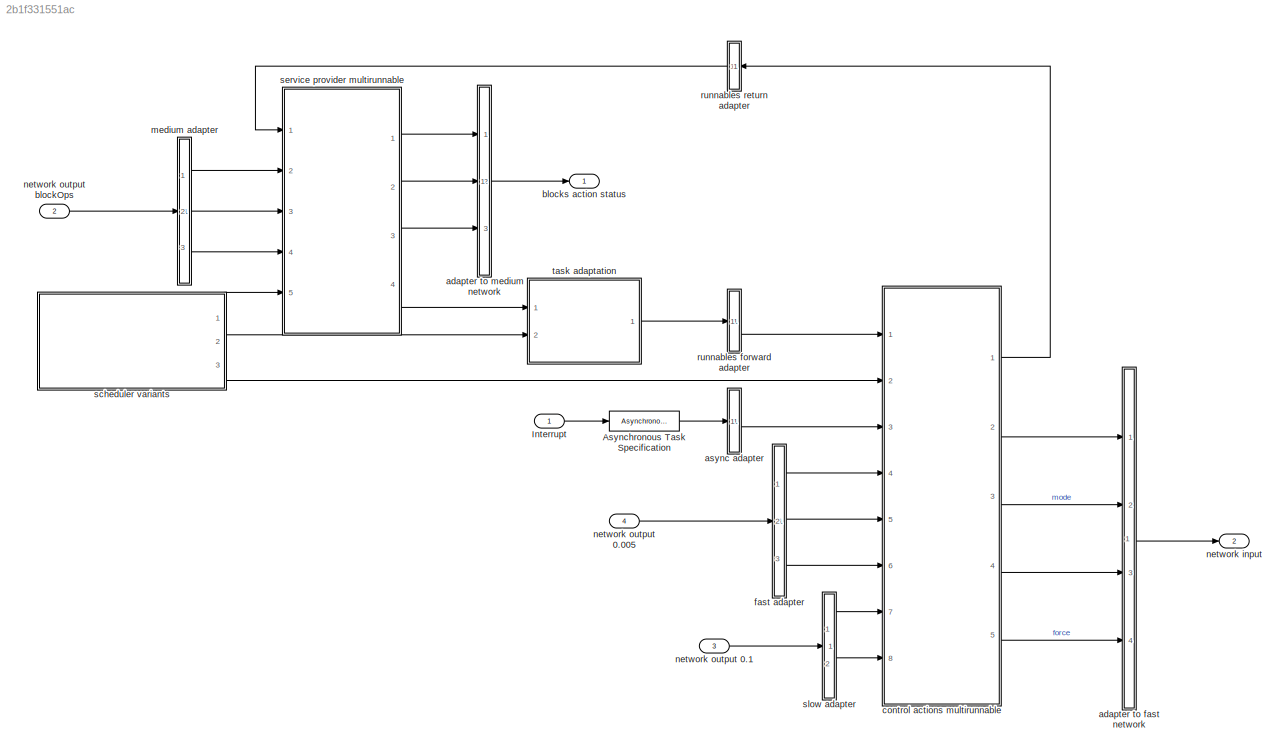
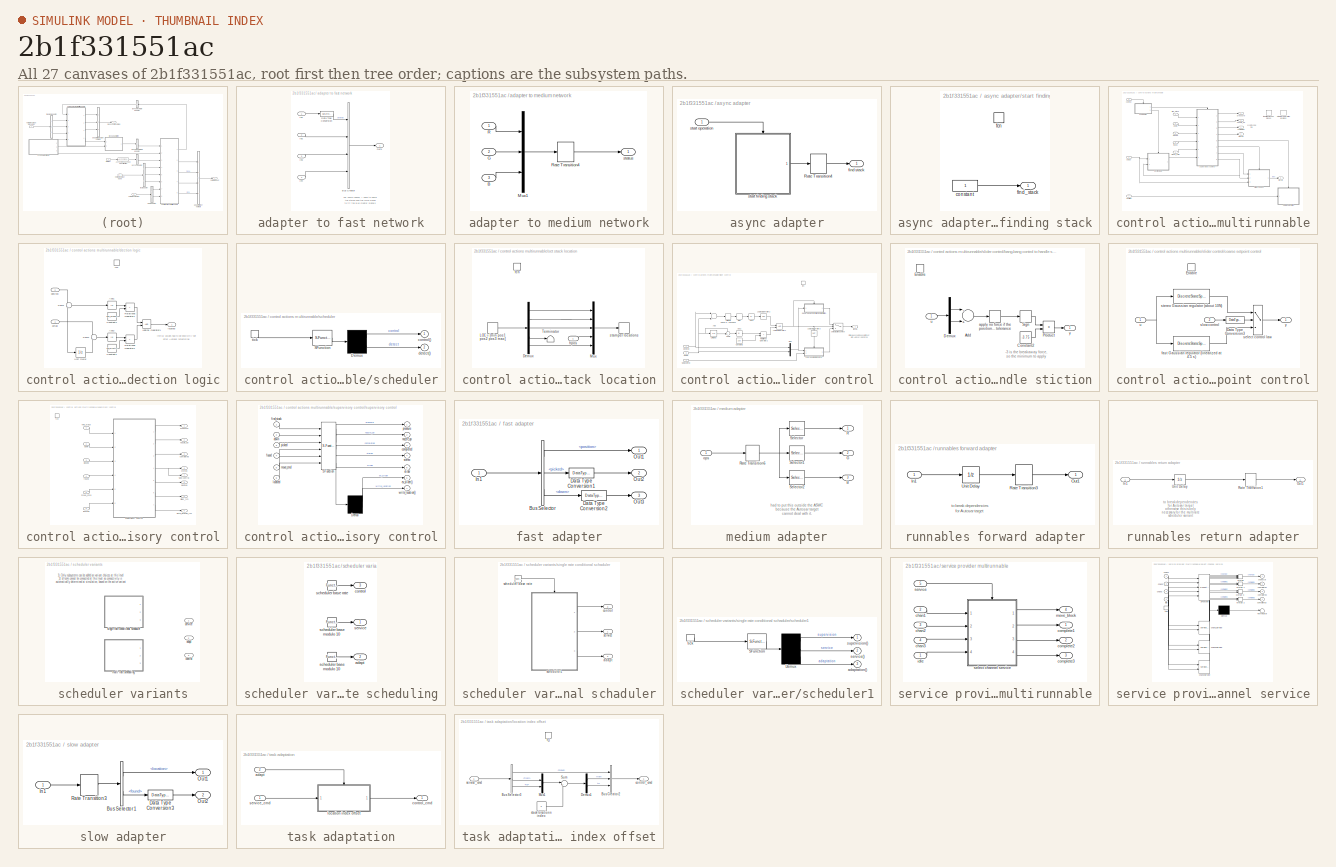
[diagram: thumbnail index - all 27 canvases of the model, root first then tree order]
MODEL slx_2b1f331551ac
KIND model
WORKSPACE source: MAT-file member
WORKSPACE vel_effective_zero = 0.0001
BLOCK [AsynchronousTaskSpecification] Asynchronous Task Specification
BLOCK [Inport] Interrupt
  IconDisplay = Port number
  OutputFunctionCall = on
BLOCK [SubSystem] adapter to fast network
  FunctionWithSeparateData = off
  MaskHideContents = off
  MinAlgLoopOccurrences = off
  Opaque = off
  Ports = [4, 1]
  PropExecContextOutsideSubsystem = off
  RTWSystemCode = Auto
  RequestExecContextInheritance = off
BLOCK [BusCreator] adapter to fast network/Bus Creator
  DisplayOption = bar
  Inputs = 'stereo','mode','pressure','force'
  NonVirtualBus = on
  OutDataTypeStr = Bus: slBusBaseOps
  Ports = [4, 1]
BLOCK [DataTypeConversion] adapter to fast network/Data Type Conversion
  OutDataTypeStr = double
  RndMeth = Floor
  SaturateOnIntegerOverflow = off
BLOCK [Inport] adapter to fast network/In1
  IconDisplay = Port number
BLOCK [Inport] adapter to fast network/In2
  IconDisplay = Port number
  Port = 2
BLOCK [Inport] adapter to fast network/In3
  IconDisplay = Port number
  Port = 3
BLOCK [Inport] adapter to fast network/In4
  IconDisplay = Port number
  Port = 4
BLOCK [Outport] adapter to fast network/Out1
  IconDisplay = Port number
BLOCK [SubSystem] adapter to medium network
  FunctionWithSeparateData = off
  MaskHideContents = off
  MinAlgLoopOccurrences = off
  Opaque = off
  Ports = [3, 1]
  PropExecContextOutsideSubsystem = off
  RTWSystemCode = Auto
  RequestExecContextInheritance = off
BLOCK [Inport] adapter to medium network/B
  IconDisplay = Port number
  Port = 3
BLOCK [Inport] adapter to medium network/G
  IconDisplay = Port number
  Port = 2
BLOCK [Mux] adapter to medium network/Mux1
  DisplayOption = bar
  Inputs = 3
  Ports = [3, 1]
BLOCK [Inport] adapter to medium network/R
  IconDisplay = Port number
BLOCK [RateTransition] adapter to medium network/Rate Transition4
  Deterministic = off
  Integrity = off
BLOCK [Outport] adapter to medium network/status
  IconDisplay = Port number
BLOCK [SubSystem] async adapter
  FunctionWithSeparateData = off
  MaskHideContents = off
  MinAlgLoopOccurrences = off
  Opaque = off
  Ports = [1, 1]
  PropExecContextOutsideSubsystem = off
  RTWSystemCode = Auto
  RequestExecContextInheritance = off
BLOCK [RateTransition] async adapter/Rate Transition4
  Deterministic = off
  Integrity = off
BLOCK [Outport] async adapter/find stack
  IconDisplay = Port number
BLOCK [SubSystem] async adapter/start finding stack
  FunctionWithSeparateData = off
  MaskHideContents = off
  MinAlgLoopOccurrences = off
  Opaque = off
  Ports = [0, 1, 0, 1]
  PropExecContextOutsideSubsystem = off
  RTWSystemCode = Auto
  RequestExecContextInheritance = off
  TreatAsAtomicUnit = on
BLOCK [Constant] async adapter/start finding stack/constant
  SampleTime = -1
BLOCK [TriggerPort] async adapter/start finding stack/fcn
  PortDimensions = 1
  Ports = []
  StatesWhenEnabling = held
  TriggerType = function-call
BLOCK [Outport] async adapter/start finding stack/find_stack
  IconDisplay = Port number
  InitialOutput = 0
  OutDataTypeStr = double
  OutputWhenDisabled = reset
  PortDimensions = 1
  SamplingMode = Sample based
  SignalType = real
BLOCK [Inport] async adapter/start operation
  IconDisplay = Port number
BLOCK [Outport] blocks action status
  BusOutputAsStruct = on
  IconDisplay = Port number
  SampleTime = 0.05
BLOCK [SubSystem] control actions multirunnable
  FunctionWithSeparateData = off
  MaskHideContents = off
  MinAlgLoopOccurrences = off
  Opaque = off
  Ports = [8, 5]
  PropExecContextOutsideSubsystem = off
  RTWSystemCode = Auto
  RequestExecContextInheritance = off
BLOCK [Inport] control actions multirunnable/actual
  IconDisplay = Port number
  Port = 4
BLOCK [Outport] control actions multirunnable/completed
  IconDisplay = Port number
BLOCK [Inport] control actions multirunnable/control
  IconDisplay = Port number
  Port = 2
BLOCK [SubSystem] control actions multirunnable/dection logic
  FunctionWithSeparateData = off
  MaskHideContents = off
  MinAlgLoopOccurrences = off
  Opaque = off
  Ports = [2, 1, 0, 1]
  PropExecContextOutsideSubsystem = off
  RTWSystemCode = Auto
  RequestExecContextInheritance = off
BLOCK [Abs] control actions multirunnable/dection logic/Abs1
  SaturateOnIntegerOverflow = off
  ZeroCross = off
BLOCK [Abs] control actions multirunnable/dection logic/Abs2
  SaturateOnIntegerOverflow = off
  ZeroCross = off
BLOCK [Constant] control actions multirunnable/dection logic/Constant1
  OutDataTypeStr = double
  Value = vel_effective_zero
BLOCK [Constant] control actions multirunnable/dection logic/Constant4
  OutDataTypeStr = double
  Value = pos_precision
BLOCK [Logic] control actions multirunnable/dection logic/Logical Operator1
  AllPortsSameDT = off
  OutDataTypeStr = boolean
  Ports = [2, 1]
BLOCK [RelationalOperator] control actions multirunnable/dection logic/Relational Operator1
  InputSameDT = off
  Operator = <
  OutDataTypeStr = boolean
  Ports = [2, 1]
  ZeroCross = off
BLOCK [RelationalOperator] control actions multirunnable/dection logic/Relational Operator2
  InputSameDT = off
  Operator = <
  OutDataTypeStr = boolean
  Ports = [2, 1]
  ZeroCross = off
BLOCK [Sum] control actions multirunnable/dection logic/Sum1
  IconShape = round
  InputSameDT = off
  Inputs = -|+
  OutDataTypeStr = Inherit: Inherit via internal rule
  Ports = [2, 1]
  SaturateOnIntegerOverflow = off
BLOCK [Sum] control actions multirunnable/dection logic/Sum2
  IconShape = round
  InputSameDT = off
  Inputs = -|+
  OutDataTypeStr = Inherit: Inherit via internal rule
  Ports = [2, 1]
  SaturateOnIntegerOverflow = off
BLOCK [UnitDelay] control actions multirunnable/dection logic/Unit Delay
  InputProcessing = Elements as channels (sample based)
  SampleTime = -1
BLOCK [Inport] control actions multirunnable/dection logic/actual
  IconDisplay = Port number
BLOCK [Inport] control actions multirunnable/dection logic/desired
  IconDisplay = Port number
  Port = 2
BLOCK [TriggerPort] control actions multirunnable/dection logic/fcn
  PortDimensions = 1
  Ports = []
  StatesWhenEnabling = held
  TriggerType = function-call
BLOCK [Outport] control actions multirunnable/dection logic/located
  IconDisplay = Port number
  InitialOutput = 0
  OutDataTypeStr = boolean
  PortDimensions = 1
  SamplingMode = Sample based
  SignalType = real
BLOCK [Inport] control actions multirunnable/down
  IconDisplay = Port number
  Port = 6
BLOCK [Inport] control actions multirunnable/find_stack
  IconDisplay = Port number
  Port = 3
BLOCK [Outport] control actions multirunnable/force
  IconDisplay = Port number
  Port = 5
BLOCK [Inport] control actions multirunnable/found
  IconDisplay = Port number
  Port = 8
BLOCK [Inport] control actions multirunnable/move_cmd
  IconDisplay = Port number
BLOCK [Outport] control actions multirunnable/nozzle_op
  IconDisplay = Port number
  Port = 3
BLOCK [Inport] control actions multirunnable/picked
  IconDisplay = Port number
  Port = 5
BLOCK [Inport] control actions multirunnable/position
  IconDisplay = Port number
  Port = 7
BLOCK [Outport] control actions multirunnable/pressure
  IconDisplay = Port number
  Port = 4
BLOCK [SubSystem] control actions multirunnable/scheduler
  ErrorFcn = Stateflow.Translate.translate
  FunctionWithSeparateData = off
  MaskHideContents = off
  MinAlgLoopOccurrences = off
  Opaque = off
  PermitHierarchicalResolution = ExplicitOnly
  Ports = [0, 2, 0, 1]
  PropExecContextOutsideSubsystem = off
  RTWSystemCode = Auto
  RequestExecContextInheritance = off
  SFBlockType = Chart
  TreatAsAtomicUnit = on
BLOCK [Demux] control actions multirunnable/scheduler/ Demux 
  Outputs = 2
  Ports = [1, 2]
BLOCK [S-Function] control actions multirunnable/scheduler/ SFunction 
  EnableBusSupport = on
  FunctionName = sf_sfun
  PortCounts = [1 1]
  Ports = [1, 1]
  Tag = Stateflow S-Function cps_base_processor_v2 3
BLOCK [Outport] control actions multirunnable/scheduler/control()
  IconDisplay = Port number
BLOCK [Outport] control actions multirunnable/scheduler/detect()
  IconDisplay = Port number
  Port = 2
BLOCK [TriggerPort] control actions multirunnable/scheduler/tick
  Ports = [0, 1]
  ShowOutputPort = on
  StatesWhenEnabling = held
  TriggerType = function-call
BLOCK [SubSystem] control actions multirunnable/set stack location
  FunctionWithSeparateData = off
  MaskHideContents = off
  MinAlgLoopOccurrences = off
  Opaque = off
  Ports = [1, 0, 0, 1]
  PropExecContextOutsideSubsystem = off
  RTWSystemCode = Auto
  RequestExecContextInheritance = off
  TreatAsAtomicUnit = on
BLOCK [Demux] control actions multirunnable/set stack location/Demux
  DisplayOption = bar
  Outputs = 5
  Ports = [1, 5]
BLOCK [DataStoreRead] control actions multirunnable/set stack location/LOC = [min pos1 pos2 pos3 max]
  DataStoreName = LOC
  Ports = [0, 1]
BLOCK [Mux] control actions multirunnable/set stack location/Mux
  DisplayOption = bar
  Inputs = 5
  Ports = [5, 1]
BLOCK [Terminator] control actions multirunnable/set stack location/Terminator
BLOCK [TriggerPort] control actions multirunnable/set stack location/fcn
  Ports = []
  StatesWhenEnabling = held
  TriggerType = function-call
BLOCK [Inport] control actions multirunnable/set stack location/hpos
  IconDisplay = Port number
BLOCK [DataStoreWrite] control actions multirunnable/set stack location/stamper locations
  DataStoreName = LOC
  Ports = [1]
BLOCK [SubSystem] control actions multirunnable/slider control
  FunctionWithSeparateData = off
  MaskHideContents = off
  MinAlgLoopOccurrences = off
  Opaque = off
  Ports = [3, 1, 0, 1]
  PropExecContextOutsideSubsystem = off
  RTWSystemCode = Auto
  RequestExecContextInheritance = off
BLOCK [Abs] control actions multirunnable/slider control/Abs1
  SaturateOnIntegerOverflow = off
  ZeroCross = off
BLOCK [Abs] control actions multirunnable/slider control/Abs2
  SaturateOnIntegerOverflow = off
  ZeroCross = off
BLOCK [Sum] control actions multirunnable/slider control/Add
  InputSameDT = off
  Inputs = -+
  OutDataTypeStr = Inherit: Inherit via internal rule
  Ports = [2, 1]
  SaturateOnIntegerOverflow = off
BLOCK [Constant] control actions multirunnable/slider control/Constant2
  OutDataTypeStr = double
  Value = 1e-3
BLOCK [Logic] control actions multirunnable/slider control/Logical Operator1
  AllPortsSameDT = off
  OutDataTypeStr = boolean
  Ports = [2, 1]
BLOCK [Logic] control actions multirunnable/slider control/Logical Operator2
  AllPortsSameDT = off
  Operator = NOT
  OutDataTypeStr = boolean
  Ports = [1, 1]
BLOCK [Logic] control actions multirunnable/slider control/Logical Operator3
  AllPortsSameDT = off
  Operator = NOT
  OutDataTypeStr = boolean
  Ports = [1, 1]
BLOCK [Mux] control actions multirunnable/slider control/Mux
  DisplayOption = bar
  Inputs = 2
  Ports = [2, 1]
BLOCK [RelationalOperator] control actions multirunnable/slider control/Relational Operator2
  InputSameDT = off
  Operator = <
  OutDataTypeStr = boolean
  Ports = [2, 1]
  ZeroCross = off
BLOCK [Signum] control actions multirunnable/slider control/Sign
BLOCK [Sum] control actions multirunnable/slider control/Sum2
  IconShape = round
  InputSameDT = off
  Inputs = -+|
  OutDataTypeStr = Inherit: Inherit via internal rule
  Ports = [2, 1]
  SaturateOnIntegerOverflow = off
BLOCK [UnitDelay] control actions multirunnable/slider control/Unit Delay
  InputProcessing = Elements as channels (sample based)
  SampleTime = -1
BLOCK [Inport] control actions multirunnable/slider control/actual
  IconDisplay = Port number
  OutDataTypeStr = double
  Port = 3
  PortDimensions = 1
  SamplingMode = Sample based
  SignalType = real
BLOCK [SubSystem] control actions multirunnable/slider control/bang-bang control to handle stiction
  FunctionWithSeparateData = off
  MaskHideContents = off
  MinAlgLoopOccurrences = off
  Opaque = off
  Ports = [1, 1, 1]
  PropExecContextOutsideSubsystem = off
  RTWSystemCode = Auto
  RequestExecContextInheritance = off
  TreatAsAtomicUnit = on
BLOCK [Sum] control actions multirunnable/slider control/bang-bang control to handle stiction/Add
  InputSameDT = off
  Inputs = -+
  OutDataTypeStr = Inherit: Inherit via internal rule
  Ports = [2, 1]
  SaturateOnIntegerOverflow = off
BLOCK [Constant] control actions multirunnable/slider control/bang-bang control to handle stiction/Constant2
  Value = -3.75
BLOCK [Demux] control actions multirunnable/slider control/bang-bang control to handle stiction/Demux
  DisplayOption = bar
  Outputs = 2
  Ports = [1, 2]
BLOCK [EnablePort] control actions multirunnable/slider control/bang-bang control to handle stiction/Enable
  Ports = []
  StatesWhenEnabling = reset
BLOCK [Product] control actions multirunnable/slider control/bang-bang control to handle stiction/Product
  InputSameDT = off
  OutDataTypeStr = Inherit: Inherit via internal rule
  Ports = [2, 1]
  SaturateOnIntegerOverflow = off
BLOCK [Signum] control actions multirunnable/slider control/bang-bang control to handle stiction/Sign
BLOCK [DeadZone] control actions multirunnable/slider control/bang-bang control to handle stiction/apply no force if the position is witin tolerance
  LowerValue = -pos_precision
  UpperValue = pos_precision
BLOCK [Inport] control actions multirunnable/slider control/bang-bang control to handle stiction/u
  IconDisplay = Port number
BLOCK [Outport] control actions multirunnable/slider control/bang-bang control to handle stiction/y
  IconDisplay = Port number
  InitialOutput = 0
  OutputWhenDisabled = reset
BLOCK [SubSystem] control actions multirunnable/slider control/coarse setpoint control
  FunctionWithSeparateData = off
  MaskHideContents = off
  MinAlgLoopOccurrences = off
  Opaque = off
  Ports = [2, 1, 1]
  PropExecContextOutsideSubsystem = off
  RTWSystemCode = Auto
  RequestExecContextInheritance = off
  TreatAsAtomicUnit = on
BLOCK [DataTypeConversion] control actions multirunnable/slider control/coarse setpoint control/Data Type Conversion3
  OutDataTypeStr = double
  RndMeth = Floor
  SaturateOnIntegerOverflow = off
BLOCK [EnablePort] control actions multirunnable/slider control/coarse setpoint control/Enable
  Ports = []
  StatesWhenEnabling = reset
BLOCK [DiscreteStateSpace] control actions multirunnable/slider control/coarse setpoint control/fast Gaussian regulator (linearized at 4.5 s)
  A = [ 0.9940    0.0048    0.0024; -0.3823    0.9227    0.9613;  0         0    1.0000]
  B = [0.0000    0.0050;  0.0024   -0.0033;  0.0050   -0.0050]
  C = [-78.2835   -6.2453  196.8773]
  D = [0.4922   -0.6889]
  SampleTime = -1
  X0 = [0.000000000000000 ;0.000000000000000 ;0.000000000000000 ]
BLOCK [Switch] control actions multirunnable/slider control/coarse setpoint control/select control law
  InputSameDT = off
  SaturateOnIntegerOverflow = off
  Threshold = 0.5
BLOCK [Inport] control actions multirunnable/slider control/coarse setpoint control/slow control
  IconDisplay = Port number
  Port = 2
BLOCK [DiscreteStateSpace] control actions multirunnable/slider control/coarse setpoint control/stereo Gaussian regulator (about 10N)
  A = [0.994649281526801 0.004838663977542 0.000386711916538 ;-0.134079378817680 0.940867531416425 0.153387200445988 ;0.000000000000000 0.000000000000000 1.000000000000000 ]
  B = [0.000000648050558 0.005011238871482 ;0.000387363207348 -0.000703695596376 ;0.005000000000000 -0.005000000000000 ]
  C = [-27.699999999999999 -2.608000000000000 31.620000000000001 ]
  D = [0.000000000000000 0.000000000000000 ]
  SampleTime = -1
  X0 = [0.000000000000000 ;0.000000000000000 ;0.000000000000000 ]
BLOCK [Inport] control actions multirunnable/slider control/coarse setpoint control/u
  IconDisplay = Port number
BLOCK [Outport] control actions multirunnable/slider control/coarse setpoint control/y
  IconDisplay = Port number
  InitialOutput = 0
  OutputWhenDisabled = reset
BLOCK [Inport] control actions multirunnable/slider control/desired
  IconDisplay = Port number
  OutDataTypeStr = double
  Port = 2
  PortDimensions = 1
  SamplingMode = Sample based
  SignalType = real
BLOCK [TriggerPort] control actions multirunnable/slider control/fcn
  PortDimensions = 1
  Ports = []
  StatesWhenEnabling = held
  TriggerType = function-call
BLOCK [Outport] control actions multirunnable/slider control/force
  IconDisplay = Port number
  InitialOutput = 0
  OutDataTypeStr = double
  OutputWhenDisabled = reset
  PortDimensions = 1
  SamplingMode = Sample based
  SignalType = real
BLOCK [Switch] control actions multirunnable/slider control/select active control
  InputSameDT = off
  SaturateOnIntegerOverflow = off
  Threshold = 0.5
BLOCK [Inport] control actions multirunnable/slider control/slow control
  IconDisplay = Port number
  OutDataTypeStr = boolean
  PortDimensions = 1
  SamplingMode = Sample based
  SignalType = real
BLOCK [DeadZone] control actions multirunnable/slider control/switch to bang-bang when close
  LowerValue = -0.11
  UpperValue = 0.11
BLOCK [DataStoreMemory] control actions multirunnable/stamper operation locatons
  DataStoreName = LOC
  InitialValue = [0.4 0.3 -0.05 -0.4 -0.6]
  OutDataTypeStr = double
  SignalType = real
  WriteAfterWriteMsg = warning
BLOCK [Outport] control actions multirunnable/stereo
  IconDisplay = Port number
  Port = 2
BLOCK [SubSystem] control actions multirunnable/supervisory control
  FunctionWithSeparateData = off
  MaskHideContents = off
  MinAlgLoopOccurrences = off
  Opaque = off
  Ports = [6, 8, 0, 1]
  PropExecContextOutsideSubsystem = off
  RTWSystemCode = Auto
  RequestExecContextInheritance = off
BLOCK [Outport] control actions multirunnable/supervisory control/completed
  IconDisplay = Port number
  InitialOutput = 0
  Port = 3
BLOCK [Outport] control actions multirunnable/supervisory control/desired
  IconDisplay = Port number
  InitialOutput = 0
  Port = 8
BLOCK [Inport] control actions multirunnable/supervisory control/down
  IconDisplay = Port number
  Port = 2
BLOCK [TriggerPort] control actions multirunnable/supervisory control/fcn
  PortDimensions = 1
  Ports = []
  StatesWhenEnabling = held
  TriggerType = function-call
BLOCK [Inport] control actions multirunnable/supervisory control/find_stack
  IconDisplay = Port number
BLOCK [Inport] control actions multirunnable/supervisory control/found
  IconDisplay = Port number
  Port = 4
BLOCK [Inport] control actions multirunnable/supervisory control/located
  IconDisplay = Port number
  Port = 6
BLOCK [Inport] control actions multirunnable/supervisory control/move_cmd
  IconDisplay = Port number
  Port = 5
BLOCK [Outport] control actions multirunnable/supervisory control/nozzle_op
  IconDisplay = Port number
  InitialOutput = 0
  Port = 2
BLOCK [Inport] control actions multirunnable/supervisory control/picked
  IconDisplay = Port number
  Port = 3
BLOCK [Outport] control actions multirunnable/supervisory control/pressure
  IconDisplay = Port number
  InitialOutput = 0
BLOCK [Outport] control actions multirunnable/supervisory control/slider_fcn
  IconDisplay = Port number
  Port = 6
BLOCK [Outport] control actions multirunnable/supervisory control/slow control
  IconDisplay = Port number
  InitialOutput = 0
  Port = 7
BLOCK [Outport] control actions multirunnable/supervisory control/stereo
  IconDisplay = Port number
  InitialOutput = 0
  Port = 4
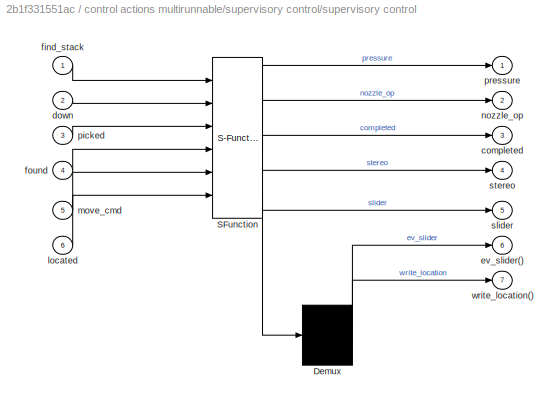
BLOCK [SubSystem] control actions multirunnable/supervisory control/supervisory control
  ErrorFcn = Stateflow.Translate.translate
  FunctionWithSeparateData = off
  MaskHideContents = off
  MinAlgLoopOccurrences = off
  Opaque = off
  PermitHierarchicalResolution = ExplicitOnly
  Ports = [6, 7]
  PropExecContextOutsideSubsystem = off
  RTWSystemCode = Auto
  RequestExecContextInheritance = off
  SFBlockType = Chart
  TreatAsAtomicUnit = on
BLOCK [Demux] control actions multirunnable/supervisory control/supervisory control/ Demux 
  Outputs = 2
  Ports = [1, 2]
BLOCK [S-Function] control actions multirunnable/supervisory control/supervisory control/ SFunction 
  EnableBusSupport = on
  FunctionName = sf_sfun
  PortCounts = [6 6]
  Ports = [6, 6]
  Tag = Stateflow S-Function cps_base_processor_v2 2
BLOCK [Outport] control actions multirunnable/supervisory control/supervisory control/completed
  IconDisplay = Port number
  Port = 3
BLOCK [Inport] control actions multirunnable/supervisory control/supervisory control/down
  IconDisplay = Port number
  Port = 2
BLOCK [Outport] control actions multirunnable/supervisory control/supervisory control/ev_slider()
  IconDisplay = Port number
  Port = 6
BLOCK [Inport] control actions multirunnable/supervisory control/supervisory control/find_stack
  IconDisplay = Port number
BLOCK [Inport] control actions multirunnable/supervisory control/supervisory control/found
  IconDisplay = Port number
  Port = 4
BLOCK [Inport] control actions multirunnable/supervisory control/supervisory control/located
  IconDisplay = Port number
  Port = 6
BLOCK [Inport] control actions multirunnable/supervisory control/supervisory control/move_cmd
  IconDisplay = Port number
  Port = 5
BLOCK [Outport] control actions multirunnable/supervisory control/supervisory control/nozzle_op
  IconDisplay = Port number
  Port = 2
BLOCK [Inport] control actions multirunnable/supervisory control/supervisory control/picked
  IconDisplay = Port number
  Port = 3
BLOCK [Outport] control actions multirunnable/supervisory control/supervisory control/pressure
  IconDisplay = Port number
BLOCK [Outport] control actions multirunnable/supervisory control/supervisory control/slider
  IconDisplay = Port number
  Port = 5
BLOCK [Outport] control actions multirunnable/supervisory control/supervisory control/stereo
  IconDisplay = Port number
  Port = 4
BLOCK [Outport] control actions multirunnable/supervisory control/supervisory control/write_location()
  IconDisplay = Port number
  Port = 7
BLOCK [Outport] control actions multirunnable/supervisory control/write_location_fcn
  IconDisplay = Port number
  Port = 5
BLOCK [DataStoreMemory] control actions multirunnable/top of the stack of blocks
  DataStoreName = TOP
  InitialValue = [0 0 0 3 0]
  OutDataTypeStr = double
  SignalType = real
  WriteAfterWriteMsg = warning
BLOCK [SubSystem] fast adapter
  FunctionWithSeparateData = off
  MaskHideContents = off
  MinAlgLoopOccurrences = off
  Opaque = off
  Ports = [1, 3]
  PropExecContextOutsideSubsystem = off
  RTWSystemCode = Auto
  RequestExecContextInheritance = off
BLOCK [BusSelector] fast adapter/Bus Selector
  OutputSignals = position,picked,down
  Ports = [1, 3]
BLOCK [DataTypeConversion] fast adapter/Data Type Conversion1
  OutDataTypeStr = uint8
  RndMeth = Floor
  SaturateOnIntegerOverflow = off
BLOCK [DataTypeConversion] fast adapter/Data Type Conversion2
  OutDataTypeStr = uint8
  RndMeth = Floor
  SaturateOnIntegerOverflow = off
BLOCK [Inport] fast adapter/In1
  IconDisplay = Port number
BLOCK [Outport] fast adapter/Out1
  IconDisplay = Port number
BLOCK [Outport] fast adapter/Out2
  IconDisplay = Port number
  Port = 2
BLOCK [Outport] fast adapter/Out3
  IconDisplay = Port number
  Port = 3
BLOCK [SubSystem] medium adapter
  FunctionWithSeparateData = off
  MaskHideContents = off
  MinAlgLoopOccurrences = off
  Opaque = off
  Ports = [1, 3]
  PropExecContextOutsideSubsystem = off
  RTWSystemCode = Auto
  RequestExecContextInheritance = off
BLOCK [Outport] medium adapter/B
  IconDisplay = Port number
  Port = 3
BLOCK [Outport] medium adapter/G
  IconDisplay = Port number
  Port = 2
BLOCK [Outport] medium adapter/R
  IconDisplay = Port number
BLOCK [RateTransition] medium adapter/Rate Transition6
  Deterministic = off
  Integrity = off
BLOCK [Selector] medium adapter/Selector
  IndexOptions = Index vector (dialog)
  Indices = 1
  InputPortWidth = 3
  OutputSizes = 1
  Ports = [1, 1]
BLOCK [Selector] medium adapter/Selector1
  IndexOptions = Index vector (dialog)
  Indices = 2
  InputPortWidth = 3
  OutputSizes = 1
  Ports = [1, 1]
BLOCK [Selector] medium adapter/Selector2
  IndexOptions = Index vector (dialog)
  Indices = 3
  InputPortWidth = 3
  OutputSizes = 1
  Ports = [1, 1]
BLOCK [Inport] medium adapter/ops
  IconDisplay = Port number
BLOCK [Outport] network input
  BusOutputAsStruct = on
  IconDisplay = Port number
  OutDataTypeStr = Bus: slBusBaseOps
  Port = 2
  SampleTime = 0.005
BLOCK [Inport] network output 0.005
  BusOutputAsStruct = on
  IconDisplay = Port number
  OutDataTypeStr = Bus: slBusSliderStatus
  Port = 4
  SamplingMode = Sample based
  SignalType = real
BLOCK [Inport] network output 0.1
  BusOutputAsStruct = on
  IconDisplay = Port number
  OutDataTypeStr = Bus: slBusStereoOps
  Port = 3
  SampleTime = 0.1
  SamplingMode = Sample based
  SignalType = real
BLOCK [Inport] network output blockOps
  BusOutputAsStruct = on
  IconDisplay = Port number
  OutDataTypeStr = Bus: slBusBlockOps
  Port = 2
  PortDimensions = 3
  SampleTime = 0.05
  SamplingMode = Sample based
  SignalType = real
BLOCK [SubSystem] runnables forward adapter
  FunctionWithSeparateData = off
  MaskHideContents = off
  MinAlgLoopOccurrences = off
  Opaque = off
  Ports = [1, 1]
  PropExecContextOutsideSubsystem = off
  RTWSystemCode = Auto
  RequestExecContextInheritance = off
BLOCK [Inport] runnables forward adapter/In1
  IconDisplay = Port number
BLOCK [Outport] runnables forward adapter/Out1
  IconDisplay = Port number
BLOCK [RateTransition] runnables forward adapter/Rate Transition3
  Deterministic = off
  Integrity = off
BLOCK [UnitDelay] runnables forward adapter/Unit Delay
  InputProcessing = Elements as channels (sample based)
  SampleTime = -1
BLOCK [SubSystem] runnables return adapter
  FunctionWithSeparateData = off
  MaskHideContents = off
  MinAlgLoopOccurrences = off
  Opaque = off
  Ports = [1, 1]
  PropExecContextOutsideSubsystem = off
  RTWSystemCode = Auto
  RequestExecContextInheritance = off
BLOCK [Inport] runnables return adapter/In1
  IconDisplay = Port number
BLOCK [Outport] runnables return adapter/Out1
  IconDisplay = Port number
BLOCK [RateTransition] runnables return adapter/Rate Transition1
  Deterministic = off
  Integrity = off
BLOCK [UnitDelay] runnables return adapter/Unit Delay
  InputProcessing = Elements as channels (sample based)
  SampleTime = -1
BLOCK [SubSystem] scheduler variants
  FunctionWithSeparateData = off
  MaskHideContents = off
  MinAlgLoopOccurrences = off
  Opaque = off
  Ports = [0, 3]
  PropExecContextOutsideSubsystem = off
  RTWSystemCode = Auto
  RequestExecContextInheritance = off
  Variant = on
BLOCK [Outport] scheduler variants/adapt
  IconDisplay = Port number
  Port = 2
BLOCK [Outport] scheduler variants/control
  IconDisplay = Port number
  Port = 3
BLOCK [SubSystem] scheduler variants/multi rate scheduling
  FunctionWithSeparateData = off
  MaskHideContents = off
  MinAlgLoopOccurrences = off
  Opaque = off
  Ports = [0, 3]
  PropExecContextOutsideSubsystem = off
  RTWSystemCode = Auto
  RequestExecContextInheritance = off
  VariantObject = useMultirateVariant
BLOCK [Outport] scheduler variants/multi rate scheduling/adapt
  IconDisplay = Port number
  Port = 2
BLOCK [Outport] scheduler variants/multi rate scheduling/control
  IconDisplay = Port number
  Port = 3
BLOCK [Reference] scheduler variants/multi rate scheduling/scheduler base modulo 10  REF=simulink/Ports &
Subsystems/Function-Call
Generator
  Ports = [0, 1]
  SourceBlock = simulink/Ports &\nSubsystems/Function-Call\nGenerator
  SourceType = Function-Call Generator
  numberOfIterations = 1
  sample_time = 0.05
BLOCK [Reference] scheduler variants/multi rate scheduling/scheduler base modulo 10   REF=simulink/Ports &
Subsystems/Function-Call
Generator
  Ports = [0, 1]
  SourceBlock = simulink/Ports &\nSubsystems/Function-Call\nGenerator
  SourceType = Function-Call Generator
  numberOfIterations = 1
  sample_time = 0.05
BLOCK [Reference] scheduler variants/multi rate scheduling/scheduler base rate  REF=simulink/Ports &
Subsystems/Function-Call
Generator
  Ports = [0, 1]
  SourceBlock = simulink/Ports &\nSubsystems/Function-Call\nGenerator
  SourceType = Function-Call Generator
  numberOfIterations = 1
  sample_time = 0.005
BLOCK [Outport] scheduler variants/multi rate scheduling/service
  IconDisplay = Port number
BLOCK [Outport] scheduler variants/service
  IconDisplay = Port number
BLOCK [SubSystem] scheduler variants/single rate conditional schaduler
  FunctionWithSeparateData = off
  MaskHideContents = off
  MinAlgLoopOccurrences = off
  Opaque = off
  Ports = [0, 3]
  PropExecContextOutsideSubsystem = off
  RTWSystemCode = Auto
  RequestExecContextInheritance = off
  VariantObject = noMultirateVariant
BLOCK [Outport] scheduler variants/single rate conditional schaduler/adapt
  IconDisplay = Port number
  Port = 2
BLOCK [Outport] scheduler variants/single rate conditional schaduler/control
  IconDisplay = Port number
  Port = 3
BLOCK [Reference] scheduler variants/single rate conditional schaduler/scheduler base rate  REF=simulink/Ports &
Subsystems/Function-Call
Generator
  Ports = [0, 1]
  SourceBlock = simulink/Ports &\nSubsystems/Function-Call\nGenerator
  SourceType = Function-Call Generator
  numberOfIterations = 1
  sample_time = 0.005
BLOCK [SubSystem] scheduler variants/single rate conditional schaduler/scheduler1
  ErrorFcn = Stateflow.Translate.translate
  FunctionWithSeparateData = off
  MaskHideContents = off
  MinAlgLoopOccurrences = off
  Opaque = off
  PermitHierarchicalResolution = ExplicitOnly
  Ports = [0, 3, 0, 1]
  PropExecContextOutsideSubsystem = off
  RTWSystemCode = Auto
  RequestExecContextInheritance = off
  SFBlockType = Chart
  TreatAsAtomicUnit = on
BLOCK [Demux] scheduler variants/single rate conditional schaduler/scheduler1/ Demux 
  Outputs = 3
  Ports = [1, 3]
BLOCK [S-Function] scheduler variants/single rate conditional schaduler/scheduler1/ SFunction 
  EnableBusSupport = on
  FunctionName = sf_sfun
  PortCounts = [1 1]
  Ports = [1, 1]
  Tag = Stateflow S-Function cps_base_processor_v2 5
BLOCK [Outport] scheduler variants/single rate conditional schaduler/scheduler1/adaptation()
  IconDisplay = Port number
  Port = 3
BLOCK [Outport] scheduler variants/single rate conditional schaduler/scheduler1/service()
  IconDisplay = Port number
  Port = 2
BLOCK [Outport] scheduler variants/single rate conditional schaduler/scheduler1/supervision()
  IconDisplay = Port number
BLOCK [TriggerPort] scheduler variants/single rate conditional schaduler/scheduler1/tick
  Ports = [0, 1]
  ShowOutputPort = on
  StatesWhenEnabling = held
  TriggerType = function-call
BLOCK [Outport] scheduler variants/single rate conditional schaduler/service
  IconDisplay = Port number
BLOCK [SubSystem] service provider multirunnable
  FunctionWithSeparateData = off
  MaskHideContents = off
  MinAlgLoopOccurrences = off
  Opaque = off
  Ports = [5, 4]
  PropExecContextOutsideSubsystem = off
  RTWSystemCode = Auto
  RequestExecContextInheritance = off
BLOCK [Inport] service provider multirunnable/chan1
  IconDisplay = Port number
  Port = 2
BLOCK [Inport] service provider multirunnable/chan2
  IconDisplay = Port number
  Port = 3
BLOCK [Inport] service provider multirunnable/chan3
  IconDisplay = Port number
  Port = 4
BLOCK [Outport] service provider multirunnable/complete1
  IconDisplay = Port number
BLOCK [Outport] service provider multirunnable/complete2
  IconDisplay = Port number
  Port = 2
BLOCK [Outport] service provider multirunnable/complete3
  IconDisplay = Port number
  Port = 3
BLOCK [Inport] service provider multirunnable/idle
  IconDisplay = Port number
BLOCK [Outport] service provider multirunnable/move_block
  IconDisplay = Port number
  Port = 4
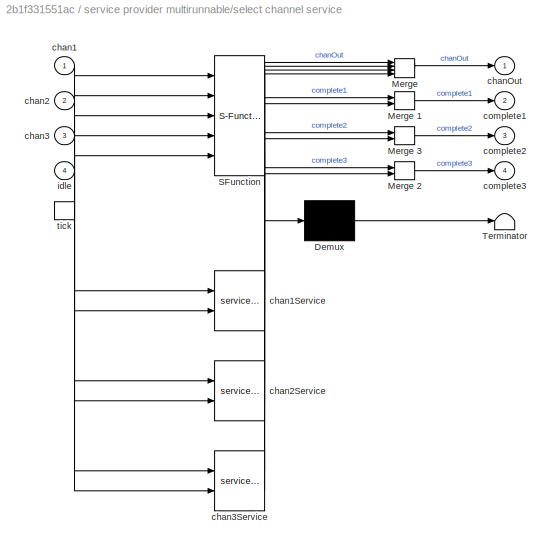
BLOCK [SubSystem] service provider multirunnable/select channel service
  ErrorFcn = Stateflow.Translate.translate
  FunctionWithSeparateData = off
  MaskHideContents = off
  MinAlgLoopOccurrences = off
  Opaque = off
  PermitHierarchicalResolution = ExplicitOnly
  Ports = [4, 4, 0, 1]
  PropExecContextOutsideSubsystem = off
  RTWSystemCode = Auto
  RequestExecContextInheritance = off
  SFBlockType = Chart
  TreatAsAtomicUnit = on
BLOCK [Demux] service provider multirunnable/select channel service/ Demux 
  Outputs = 1
  Ports = [1, 1]
BLOCK [Merge] service provider multirunnable/select channel service/ Merge 
  Inputs = 4
  Ports = [4, 1]
BLOCK [Merge] service provider multirunnable/select channel service/ Merge 1
  Ports = [2, 1]
BLOCK [Merge] service provider multirunnable/select channel service/ Merge 2
  Ports = [2, 1]
BLOCK [Merge] service provider multirunnable/select channel service/ Merge 3
  Ports = [2, 1]
BLOCK [S-Function] service provider multirunnable/select channel service/ SFunction 
  EnableBusSupport = on
  FunctionName = sf_sfun
  PortCounts = [5 5]
  Ports = [5, 5]
  Tag = Stateflow S-Function cps_base_processor_v2 1
BLOCK [Terminator] service provider multirunnable/select channel service/ Terminator 
BLOCK [Inport] service provider multirunnable/select channel service/chan1
  IconDisplay = Port number
BLOCK [Reference] service provider multirunnable/select channel service/chan1Service  REF=cps_lib_v2/service subchart  (lib defined in slx_b159750f0f55)
  Ports = [2, 2]
  SourceBlock = cps_lib_v2/service subchart
  SourceType = Stateflow
BLOCK [Inport] service provider multirunnable/select channel service/chan2
  IconDisplay = Port number
  Port = 2
BLOCK [Reference] service provider multirunnable/select channel service/chan2Service  REF=cps_lib_v2/service subchart  (lib defined in slx_b159750f0f55)
  Ports = [2, 2]
  SourceBlock = cps_lib_v2/service subchart
  SourceType = Stateflow
BLOCK [Inport] service provider multirunnable/select channel service/chan3
  IconDisplay = Port number
  Port = 3
BLOCK [Reference] service provider multirunnable/select channel service/chan3Service  REF=cps_lib_v2/service subchart  (lib defined in slx_b159750f0f55)
  Ports = [2, 2]
  SourceBlock = cps_lib_v2/service subchart
  SourceType = Stateflow
BLOCK [Outport] service provider multirunnable/select channel service/chanOut
  IconDisplay = Port number
BLOCK [Outport] service provider multirunnable/select channel service/complete1
  IconDisplay = Port number
  Port = 2
BLOCK [Outport] service provider multirunnable/select channel service/complete2
  IconDisplay = Port number
  Port = 3
BLOCK [Outport] service provider multirunnable/select channel service/complete3
  IconDisplay = Port number
  Port = 4
BLOCK [Inport] service provider multirunnable/select channel service/idle
  IconDisplay = Port number
  Port = 4
BLOCK [TriggerPort] service provider multirunnable/select channel service/tick
  Ports = [0, 1]
  ShowOutputPort = on
  StatesWhenEnabling = held
  TriggerType = function-call
BLOCK [Inport] service provider multirunnable/service
  IconDisplay = Port number
  Port = 5
BLOCK [SubSystem] slow adapter
  FunctionWithSeparateData = off
  MaskHideContents = off
  MinAlgLoopOccurrences = off
  Opaque = off
  Ports = [1, 2]
  PropExecContextOutsideSubsystem = off
  RTWSystemCode = Auto
  RequestExecContextInheritance = off
BLOCK [BusSelector] slow adapter/Bus Selector1
  OutputSignals = location,found
  Ports = [1, 2]
BLOCK [DataTypeConversion] slow adapter/Data Type Conversion3
  OutDataTypeStr = uint16
  RndMeth = Floor
  SaturateOnIntegerOverflow = off
BLOCK [Inport] slow adapter/In1
  IconDisplay = Port number
BLOCK [Outport] slow adapter/Out1
  IconDisplay = Port number
BLOCK [Outport] slow adapter/Out2
  IconDisplay = Port number
  Port = 2
BLOCK [RateTransition] slow adapter/Rate Transition3
  Deterministic = off
  Integrity = off
BLOCK [SubSystem] task adaptation
  FunctionWithSeparateData = off
  MaskHideContents = off
  MinAlgLoopOccurrences = off
  Opaque = off
  Ports = [2, 1]
  PropExecContextOutsideSubsystem = off
  RTWSystemCode = Auto
  RequestExecContextInheritance = off
BLOCK [Inport] task adaptation/adapt
  IconDisplay = Port number
  Port = 2
BLOCK [Outport] task adaptation/control_cmd
  IconDisplay = Port number
BLOCK [SubSystem] task adaptation/location index offset
  FunctionWithSeparateData = off
  MaskHideContents = off
  MinAlgLoopOccurrences = off
  Opaque = off
  Ports = [1, 1, 0, 1]
  PropExecContextOutsideSubsystem = off
  RTWSystemCode = Auto
  RequestExecContextInheritance = off
BLOCK [BusCreator] task adaptation/location index offset/Bus Creator2
  DisplayOption = bar
  Inputs = 'move','from','to'
  NonVirtualBus = on
  OutDataTypeStr = Bus: slBusMoveBlock
  Ports = [3, 1]
BLOCK [BusSelector] task adaptation/location index offset/Bus Selector3
  OutputSignals = move,from,to
  Ports = [1, 3]
BLOCK [Demux] task adaptation/location index offset/Demux1
  DisplayOption = bar
  Outputs = 2
  Ports = [1, 2]
BLOCK [Mux] task adaptation/location index offset/Mux1
  DisplayOption = bar
  Inputs = 2
  Ports = [2, 1]
BLOCK [Sum] task adaptation/location index offset/Sum
  IconShape = round
  InputSameDT = off
  Inputs = |++
  OutDataTypeStr = Inherit: Inherit via internal rule
  Ports = [2, 1]
  SaturateOnIntegerOverflow = off
BLOCK [Outport] task adaptation/location index offset/control_cmd
  IconDisplay = Port number
  InitialOutput = 0
BLOCK [TriggerPort] task adaptation/location index offset/f()
  PortDimensions = 1
  Ports = []
  StatesWhenEnabling = held
  TriggerType = function-call
BLOCK [Inport] task adaptation/location index offset/service_cmd
  IconDisplay = Port number
BLOCK [Constant] task adaptation/location index offset/stack locationn index
  Value = 3
BLOCK [Inport] task adaptation/service_cmd
  IconDisplay = Port number
ANNOTATION adapter to fast network: For some reason, I have to name the stereo and the force signal to fit the Bus creator signals
ANNOTATION control actions multirunnable: expilcit sample time
ANNOTATION control actions multirunnable/dection logic: initial values had to be explicitly set after Autosar refactoring
ANNOTATION control actions multirunnable/slider control: initial values had to be explicitly set after Autosar refactoring
ANNOTATION control actions multirunnable/slider control/bang-bang control to handle stiction: -3 is the breakaway force, so the minimum to apply
ANNOTATION medium adapter: had to put this outside the ASWC because the Autosar target cannot deal with it.
ANNOTATION runnables forward adapter: to break dependencies for Autosar target
ANNOTATION runnables return adapter: to break dependencies for Autosar target otherwise this is only necessary for the multirate scheduler variant
ANNOTATION scheduler variants: 1) Only subsystems can be added as variant choices at this level 2) Blocks cannot be connected at this level as connectivity is automatically determined at simulation, based on the active variant
LINE Asynchronous Task Specification:1 -> async adapter:1
LINE Interrupt:1 -> Asynchronous Task Specification:1
LINE adapter to fast network/Bus Creator:1 -> adapter to fast network/Out1:1
LINE adapter to fast network/Data Type Conversion:1 -> adapter to fast network/Bus Creator:1
LINE adapter to fast network/In1:1 -> adapter to fast network/Data Type Conversion:1
LINE adapter to fast network/In2:1 -> adapter to fast network/Bus Creator:2
LINE adapter to fast network/In3:1 -> adapter to fast network/Bus Creator:3
LINE adapter to fast network/In4:1 -> adapter to fast network/Bus Creator:4
LINE adapter to fast network:1 -> network input:1
LINE adapter to medium network/B:1 -> adapter to medium network/Mux1:3
LINE adapter to medium network/G:1 -> adapter to medium network/Mux1:2
LINE adapter to medium network/Mux1:1 -> adapter to medium network/Rate Transition4:1
LINE adapter to medium network/R:1 -> adapter to medium network/Mux1:1
LINE adapter to medium network/Rate Transition4:1 -> adapter to medium network/status:1
LINE adapter to medium network:1 -> blocks action status:1
LINE async adapter/Rate Transition4:1 -> async adapter/find stack:1
LINE async adapter/start finding stack/constant:1 -> async adapter/start finding stack/find_stack:1
LINE async adapter/start finding stack:1 -> async adapter/Rate Transition4:1
LINE async adapter/start operation:1 -> async adapter/start finding stack:trigger
LINE async adapter:1 -> control actions multirunnable:3
NET control actions multirunnable/actual:1 -> control actions multirunnable/dection logic:1, control actions multirunnable/slider control:3
LINE control actions multirunnable/control:1 -> control actions multirunnable/scheduler:trigger
LINE control actions multirunnable/dection logic/Abs1:1 -> control actions multirunnable/dection logic/Relational Operator1:1
LINE control actions multirunnable/dection logic/Abs2:1 -> control actions multirunnable/dection logic/Relational Operator2:1
LINE control actions multirunnable/dection logic/Constant1:1 -> control actions multirunnable/dection logic/Relational Operator2:2
LINE control actions multirunnable/dection logic/Constant4:1 -> control actions multirunnable/dection logic/Relational Operator1:2
LINE control actions multirunnable/dection logic/Logical Operator1:1 -> control actions multirunnable/dection logic/located:1
LINE control actions multirunnable/dection logic/Relational Operator1:1 -> control actions multirunnable/dection logic/Logical Operator1:1
LINE control actions multirunnable/dection logic/Relational Operator2:1 -> control actions multirunnable/dection logic/Logical Operator1:2
LINE control actions multirunnable/dection logic/Sum1:1 -> control actions multirunnable/dection logic/Abs1:1
LINE control actions multirunnable/dection logic/Sum2:1 -> control actions multirunnable/dection logic/Abs2:1
LINE control actions multirunnable/dection logic/Unit Delay:1 -> control actions multirunnable/dection logic/Sum2:2
NET control actions multirunnable/dection logic/actual:1 -> control actions multirunnable/dection logic/Sum1:2, control actions multirunnable/dection logic/Sum2:1, control actions multirunnable/dection logic/Unit Delay:1
LINE control actions multirunnable/dection logic/desired:1 -> control actions multirunnable/dection logic/Sum1:1
LINE control actions multirunnable/dection logic:1 -> control actions multirunnable/supervisory control:6
LINE control actions multirunnable/down:1 -> control actions multirunnable/supervisory control:2
LINE control actions multirunnable/find_stack:1 -> control actions multirunnable/supervisory control:1
LINE control actions multirunnable/found:1 -> control actions multirunnable/supervisory control:4
LINE control actions multirunnable/move_cmd:1 -> control actions multirunnable/supervisory control:5
LINE control actions multirunnable/picked:1 -> control actions multirunnable/supervisory control:3
LINE control actions multirunnable/position:1 -> control actions multirunnable/set stack location:1
LINE control actions multirunnable/scheduler:1 -> control actions multirunnable/supervisory control:trigger
LINE control actions multirunnable/scheduler:2 -> control actions multirunnable/dection logic:trigger
LINE control actions multirunnable/set stack location/Demux:1 -> control actions multirunnable/set stack location/Mux:1
LINE control actions multirunnable/set stack location/Demux:2 -> control actions multirunnable/set stack location/Mux:2
LINE control actions multirunnable/set stack location/Demux:3 -> control actions multirunnable/set stack location/Mux:3
LINE control actions multirunnable/set stack location/Demux:4 -> control actions multirunnable/set stack location/Terminator:1
LINE control actions multirunnable/set stack location/Demux:5 -> control actions multirunnable/set stack location/Mux:5
LINE control actions multirunnable/set stack location/LOC = [min pos1 pos2 pos3 max]:1 -> control actions multirunnable/set stack location/Demux:1
LINE control actions multirunnable/set stack location/Mux:1 -> control actions multirunnable/set stack location/stamper locations:1
LINE control actions multirunnable/set stack location/hpos:1 -> control actions multirunnable/set stack location/Mux:4
LINE control actions multirunnable/slider control/Abs1:1 -> control actions multirunnable/slider control/Logical Operator2:1
LINE control actions multirunnable/slider control/Abs2:1 -> control actions multirunnable/slider control/Relational Operator2:1
LINE control actions multirunnable/slider control/Add:1 -> control actions multirunnable/slider control/switch to bang-bang when close:1
LINE control actions multirunnable/slider control/Constant2:1 -> control actions multirunnable/slider control/Relational Operator2:2
NET control actions multirunnable/slider control/Logical Operator1:1 -> control actions multirunnable/slider control/Logical Operator3:1, control actions multirunnable/slider control/bang-bang control to handle stiction:enable, control actions multirunnable/slider control/select active control:2
LINE control actions multirunnable/slider control/Logical Operator2:1 -> control actions multirunnable/slider control/Logical Operator1:1
LINE control actions multirunnable/slider control/Logical Operator3:1 -> control actions multirunnable/slider control/coarse setpoint control:enable
NET control actions multirunnable/slider control/Mux:1 -> control actions multirunnable/slider control/bang-bang control to handle stiction:1, control actions multirunnable/slider control/coarse setpoint control:1
LINE control actions multirunnable/slider control/Relational Operator2:1 -> control actions multirunnable/slider control/Logical Operator1:2
LINE control actions multirunnable/slider control/Sign:1 -> control actions multirunnable/slider control/Abs1:1
LINE control actions multirunnable/slider control/Sum2:1 -> control actions multirunnable/slider control/Abs2:1
LINE control actions multirunnable/slider control/Unit Delay:1 -> control actions multirunnable/slider control/Sum2:2
NET control actions multirunnable/slider control/actual:1 -> control actions multirunnable/slider control/Add:2, control actions multirunnable/slider control/Mux:2, control actions multirunnable/slider control/Sum2:1, control actions multirunnable/slider control/Unit Delay:1
LINE control actions multirunnable/slider control/bang-bang control to handle stiction/Add:1 -> control actions multirunnable/slider control/bang-bang control to handle stiction/apply no force if the position is witin tolerance:1
LINE control actions multirunnable/slider control/bang-bang control to handle stiction/Constant2:1 -> control actions multirunnable/slider control/bang-bang control to handle stiction/Product:2
LINE control actions multirunnable/slider control/bang-bang control to handle stiction/Demux:1 -> control actions multirunnable/slider control/bang-bang control to handle stiction/Add:1
LINE control actions multirunnable/slider control/bang-bang control to handle stiction/Demux:2 -> control actions multirunnable/slider control/bang-bang control to handle stiction/Add:2
LINE control actions multirunnable/slider control/bang-bang control to handle stiction/Product:1 -> control actions multirunnable/slider control/bang-bang control to handle stiction/y:1
LINE control actions multirunnable/slider control/bang-bang control to handle stiction/Sign:1 -> control actions multirunnable/slider control/bang-bang control to handle stiction/Product:1
LINE control actions multirunnable/slider control/bang-bang control to handle stiction/apply no force if the position is witin tolerance:1 -> control actions multirunnable/slider control/bang-bang control to handle stiction/Sign:1
LINE control actions multirunnable/slider control/bang-bang control to handle stiction/u:1 -> control actions multirunnable/slider control/bang-bang control to handle stiction/Demux:1
LINE control actions multirunnable/slider control/bang-bang control to handle stiction:1 -> control actions multirunnable/slider control/select active control:1
LINE control actions multirunnable/slider control/coarse setpoint control/Data Type Conversion3:1 -> control actions multirunnable/slider control/coarse setpoint control/select control law:2
LINE control actions multirunnable/slider control/coarse setpoint control/fast Gaussian regulator (linearized at 4.5 s):1 -> control actions multirunnable/slider control/coarse setpoint control/select control law:3
LINE control actions multirunnable/slider control/coarse setpoint control/select control law:1 -> control actions multirunnable/slider control/coarse setpoint control/y:1
LINE control actions multirunnable/slider control/coarse setpoint control/slow control:1 -> control actions multirunnable/slider control/coarse setpoint control/Data Type Conversion3:1
LINE control actions multirunnable/slider control/coarse setpoint control/stereo Gaussian regulator (about 10N):1 -> control actions multirunnable/slider control/coarse setpoint control/select control law:1
NET control actions multirunnable/slider control/coarse setpoint control/u:1 -> control actions multirunnable/slider control/coarse setpoint control/fast Gaussian regulator (linearized at 4.5 s):1, control actions multirunnable/slider control/coarse setpoint control/stereo Gaussian regulator (about 10N):1
LINE control actions multirunnable/slider control/coarse setpoint control:1 -> control actions multirunnable/slider control/select active control:3
NET control actions multirunnable/slider control/desired:1 -> control actions multirunnable/slider control/Add:1, control actions multirunnable/slider control/Mux:1
LINE control actions multirunnable/slider control/select active control:1 -> control actions multirunnable/slider control/force:1
LINE control actions multirunnable/slider control/slow control:1 -> control actions multirunnable/slider control/coarse setpoint control:2
LINE control actions multirunnable/slider control/switch to bang-bang when close:1 -> control actions multirunnable/slider control/Sign:1
LINE control actions multirunnable/slider control:1 -> control actions multirunnable/force:1
LINE control actions multirunnable/supervisory control/down:1 -> control actions multirunnable/supervisory control/supervisory control:2
LINE control actions multirunnable/supervisory control/find_stack:1 -> control actions multirunnable/supervisory control/supervisory control:1
LINE control actions multirunnable/supervisory control/found:1 -> control actions multirunnable/supervisory control/supervisory control:4
LINE control actions multirunnable/supervisory control/located:1 -> control actions multirunnable/supervisory control/supervisory control:6
LINE control actions multirunnable/supervisory control/move_cmd:1 -> control actions multirunnable/supervisory control/supervisory control:5
LINE control actions multirunnable/supervisory control/picked:1 -> control actions multirunnable/supervisory control/supervisory control:3
LINE control actions multirunnable/supervisory control/supervisory control:1 -> control actions multirunnable/supervisory control/pressure:1
LINE control actions multirunnable/supervisory control/supervisory control:2 -> control actions multirunnable/supervisory control/nozzle_op:1
LINE control actions multirunnable/supervisory control/supervisory control:3 -> control actions multirunnable/supervisory control/completed:1
NET control actions multirunnable/supervisory control/supervisory control:4 -> control actions multirunnable/supervisory control/slow control:1, control actions multirunnable/supervisory control/stereo:1
LINE control actions multirunnable/supervisory control/supervisory control:5 -> control actions multirunnable/supervisory control/desired:1
LINE control actions multirunnable/supervisory control/supervisory control:6 -> control actions multirunnable/supervisory control/slider_fcn:1
LINE control actions multirunnable/supervisory control/supervisory control:7 -> control actions multirunnable/supervisory control/write_location_fcn:1
LINE control actions multirunnable/supervisory control:1 -> control actions multirunnable/pressure:1
LINE control actions multirunnable/supervisory control:2 -> control actions multirunnable/nozzle_op:1
LINE control actions multirunnable/supervisory control:3 -> control actions multirunnable/completed:1
LINE control actions multirunnable/supervisory control:4 -> control actions multirunnable/stereo:1
LINE control actions multirunnable/supervisory control:5 -> control actions multirunnable/set stack location:trigger
LINE control actions multirunnable/supervisory control:6 -> control actions multirunnable/slider control:trigger
LINE control actions multirunnable/supervisory control:7 -> control actions multirunnable/slider control:1
NET control actions multirunnable/supervisory control:8 -> control actions multirunnable/dection logic:2, control actions multirunnable/slider control:2
LINE control actions multirunnable:1 -> runnables return adapter:1
LINE control actions multirunnable:2 -> adapter to fast network:1
LINE control actions multirunnable:3 -> adapter to fast network:2
LINE control actions multirunnable:4 -> adapter to fast network:3
LINE control actions multirunnable:5 -> adapter to fast network:4
LINE fast adapter/Bus Selector:1 -> fast adapter/Out1:1
LINE fast adapter/Bus Selector:2 -> fast adapter/Data Type Conversion1:1
LINE fast adapter/Bus Selector:3 -> fast adapter/Data Type Conversion2:1
LINE fast adapter/Data Type Conversion1:1 -> fast adapter/Out2:1
LINE fast adapter/Data Type Conversion2:1 -> fast adapter/Out3:1
LINE fast adapter/In1:1 -> fast adapter/Bus Selector:1
LINE fast adapter:1 -> control actions multirunnable:4
LINE fast adapter:2 -> control actions multirunnable:5
LINE fast adapter:3 -> control actions multirunnable:6
NET medium adapter/Rate Transition6:1 -> medium adapter/Selector1:1, medium adapter/Selector2:1, medium adapter/Selector:1
LINE medium adapter/Selector1:1 -> medium adapter/G:1
LINE medium adapter/Selector2:1 -> medium adapter/B:1
LINE medium adapter/Selector:1 -> medium adapter/R:1
LINE medium adapter/ops:1 -> medium adapter/Rate Transition6:1
LINE medium adapter:1 -> service provider multirunnable:2
LINE medium adapter:2 -> service provider multirunnable:3
LINE medium adapter:3 -> service provider multirunnable:4
LINE network output 0.005:1 -> fast adapter:1
LINE network output 0.1:1 -> slow adapter:1
LINE network output blockOps:1 -> medium adapter:1
LINE runnables forward adapter/In1:1 -> runnables forward adapter/Unit Delay:1
LINE runnables forward adapter/Rate Transition3:1 -> runnables forward adapter/Out1:1
LINE runnables forward adapter/Unit Delay:1 -> runnables forward adapter/Rate Transition3:1
LINE runnables forward adapter:1 -> control actions multirunnable:1
LINE runnables return adapter/In1:1 -> runnables return adapter/Unit Delay:1
LINE runnables return adapter/Rate Transition1:1 -> runnables return adapter/Out1:1
LINE runnables return adapter/Unit Delay:1 -> runnables return adapter/Rate Transition1:1
LINE runnables return adapter:1 -> service provider multirunnable:1
LINE scheduler variants/multi rate scheduling/scheduler base modulo 10 :1 -> scheduler variants/multi rate scheduling/adapt:1
LINE scheduler variants/multi rate scheduling/scheduler base modulo 10:1 -> scheduler variants/multi rate scheduling/service:1
LINE scheduler variants/multi rate scheduling/scheduler base rate:1 -> scheduler variants/multi rate scheduling/control:1
LINE scheduler variants/single rate conditional schaduler/scheduler base rate:1 -> scheduler variants/single rate conditional schaduler/scheduler1:trigger
LINE scheduler variants/single rate conditional schaduler/scheduler1:1 -> scheduler variants/single rate conditional schaduler/control:1
LINE scheduler variants/single rate conditional schaduler/scheduler1:2 -> scheduler variants/single rate conditional schaduler/service:1
LINE scheduler variants/single rate conditional schaduler/scheduler1:3 -> scheduler variants/single rate conditional schaduler/adapt:1
LINE scheduler variants:1 -> service provider multirunnable:5
LINE scheduler variants:2 -> task adaptation:2
LINE scheduler variants:3 -> control actions multirunnable:2
LINE service provider multirunnable/chan1:1 -> service provider multirunnable/select channel service:1
LINE service provider multirunnable/chan2:1 -> service provider multirunnable/select channel service:2
LINE service provider multirunnable/chan3:1 -> service provider multirunnable/select channel service:3
LINE service provider multirunnable/idle:1 -> service provider multirunnable/select channel service:4
LINE service provider multirunnable/select channel service:1 -> service provider multirunnable/move_block:1
LINE service provider multirunnable/select channel service:2 -> service provider multirunnable/complete1:1
LINE service provider multirunnable/select channel service:3 -> service provider multirunnable/complete2:1
LINE service provider multirunnable/select channel service:4 -> service provider multirunnable/complete3:1
LINE service provider multirunnable/service:1 -> service provider multirunnable/select channel service:trigger
LINE service provider multirunnable:1 -> adapter to medium network:1
LINE service provider multirunnable:2 -> adapter to medium network:2
LINE service provider multirunnable:3 -> adapter to medium network:3
LINE service provider multirunnable:4 -> task adaptation:1
LINE slow adapter/Bus Selector1:1 -> slow adapter/Out1:1
LINE slow adapter/Bus Selector1:2 -> slow adapter/Data Type Conversion3:1
LINE slow adapter/Data Type Conversion3:1 -> slow adapter/Out2:1
LINE slow adapter/In1:1 -> slow adapter/Rate Transition3:1
LINE slow adapter/Rate Transition3:1 -> slow adapter/Bus Selector1:1
LINE slow adapter:1 -> control actions multirunnable:7
LINE slow adapter:2 -> control actions multirunnable:8
LINE task adaptation/adapt:1 -> task adaptation/location index offset:trigger
LINE task adaptation/location index offset/Bus Creator2:1 -> task adaptation/location index offset/control_cmd:1
LINE task adaptation/location index offset/Bus Selector3:1 -> task adaptation/location index offset/Bus Creator2:1
LINE task adaptation/location index offset/Bus Selector3:2 -> task adaptation/location index offset/Mux1:1
LINE task adaptation/location index offset/Bus Selector3:3 -> task adaptation/location index offset/Mux1:2
LINE task adaptation/location index offset/Demux1:1 -> task adaptation/location index offset/Bus Creator2:2
LINE task adaptation/location index offset/Demux1:2 -> task adaptation/location index offset/Bus Creator2:3
LINE task adaptation/location index offset/Mux1:1 -> task adaptation/location index offset/Sum:1
LINE task adaptation/location index offset/Sum:1 -> task adaptation/location index offset/Demux1:1
LINE task adaptation/location index offset/service_cmd:1 -> task adaptation/location index offset/Bus Selector3:1
LINE task adaptation/location index offset/stack locationn index:1 -> task adaptation/location index offset/Sum:2
LINE task adaptation/location index offset:1 -> task adaptation/control_cmd:1
LINE task adaptation/service_cmd:1 -> task adaptation/location index offset:1
LINE task adaptation:1 -> runnables forward adapter:1
note: NET lines group one-source signal fan-out (src -> all destinations, sorted); 1:1 wires keep LINE
